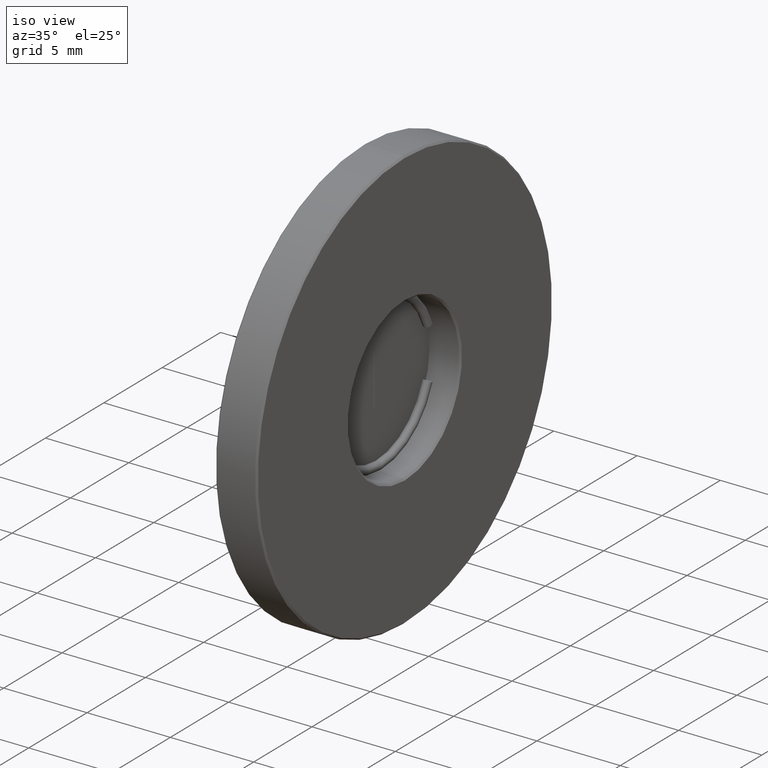
[diagram: clean part render]
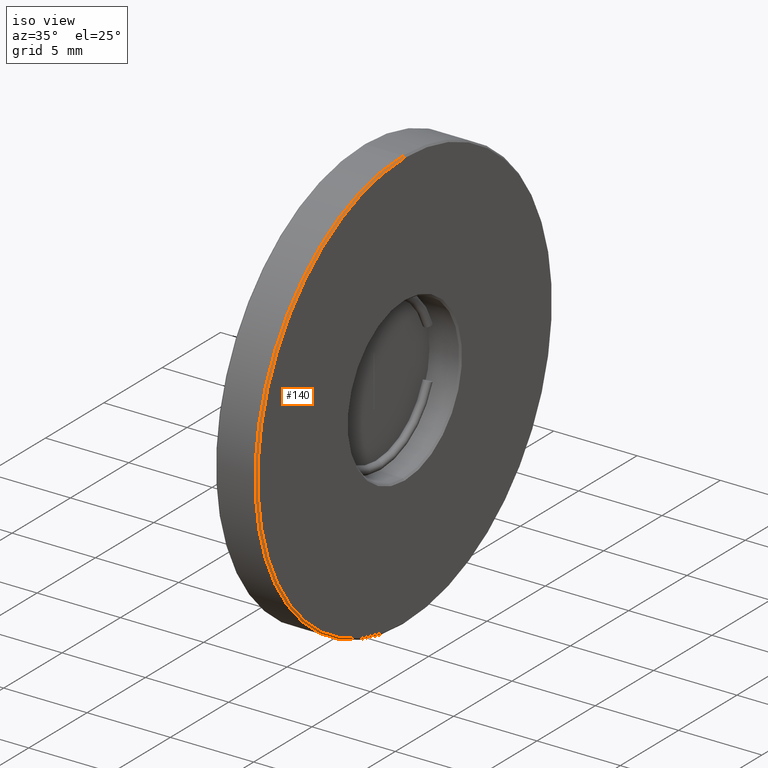
[diagram: same view with one face highlighted and labeled with its STEP entity id]
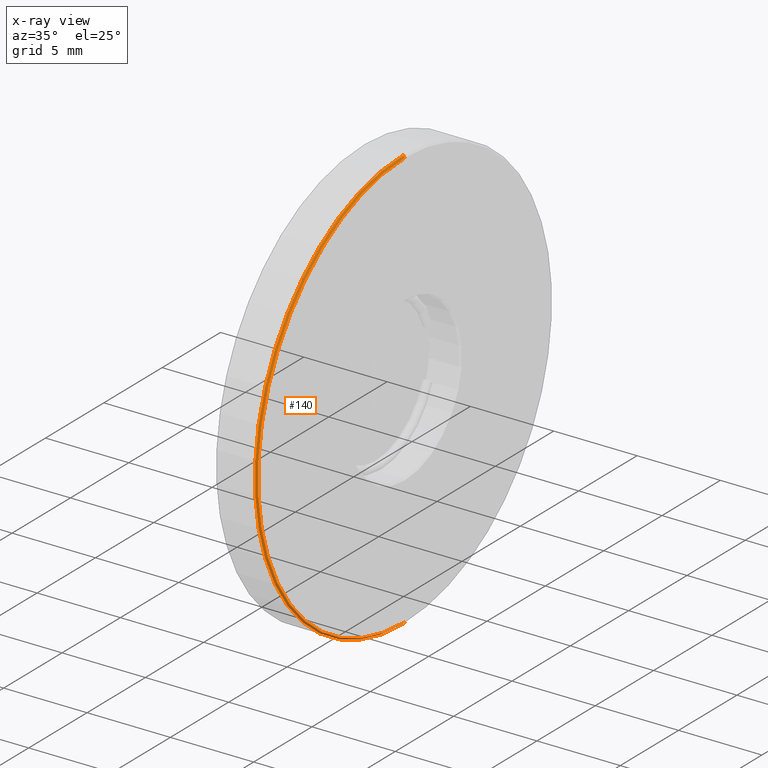
[diagram: x-ray of the same camera — body ghosted, the highlighted face saturated]
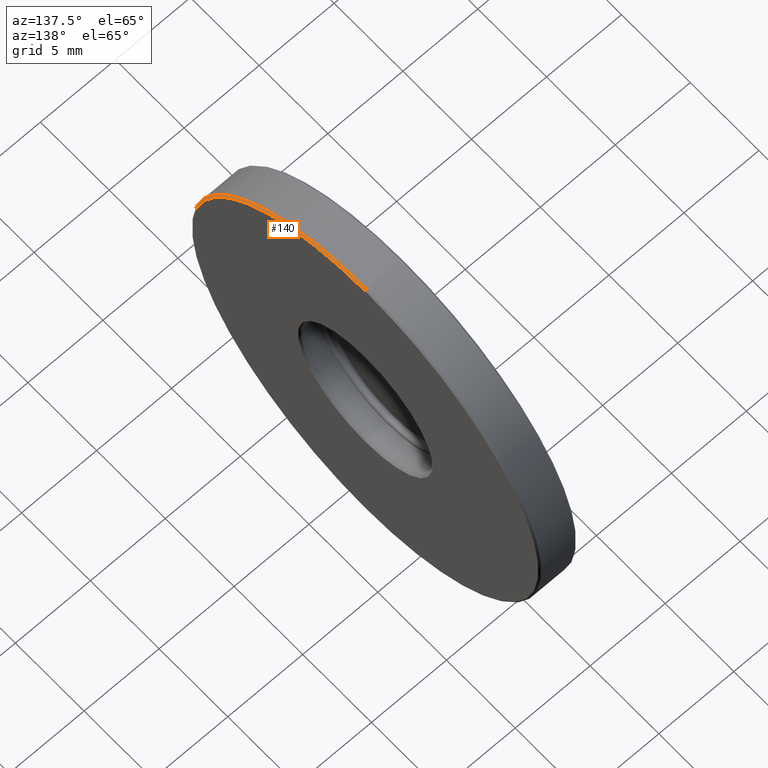
[diagram: same view with one face highlighted and labeled with its STEP entity id]
A machine part, iso view. The second image highlights one B-rep face of the part: STEP entity #140.
The next image is the same camera in x-ray: the body ghosted, the highlighted face saturated — about 0% of this face is hidden behind the body in this view.
A second angle (auxiliary view) of the same face is appended — the face is thin or edge-on in the first view.
In plain terms, the highlighted conical surface has half-angle 45 deg.
Its self-contained STEP definition (entity closure, byte-faithful):
#72 = DIRECTION ( 'NONE',  ( -0.7071067811865415775, 0.000000000000000000, 0.7071067811865535679 ) ) ;
#77 = DIRECTION ( 'NONE',  ( 0.000000000000000000, 0.000000000000000000, -1.000000000000000000 ) ) ;
#83 = CARTESIAN_POINT ( 'NONE',  ( -2.434863851252999645, 1.436758841085001626, 12.79999999999999893 ) ) ;
#125 = EDGE_CURVE ( 'NONE', #954, #929, #151, .T. ) ;
#140 = ADVANCED_FACE ( 'NONE', ( #692 ), #1192, .T. ) ;
#151 = LINE ( 'NONE', #346, #958 ) ;
#238 = VERTEX_POINT ( 'NONE', #1000 ) ;
#285 = CIRCLE ( 'NONE', #589, 12.69999999999999929 ) ;
#346 = CARTESIAN_POINT ( 'NONE',  ( -2.434863851252999645, 1.436758841085001626, 12.79999999999999893 ) ) ;
#352 = CARTESIAN_POINT ( 'NONE',  ( -2.434863851252999645, 1.436758841085000071, 25.39999999999999858 ) ) ;
#356 = EDGE_CURVE ( 'NONE', #238, #954, #771, .T. ) ;
#394 = DIRECTION ( 'NONE',  ( -1.000000000000000000, 0.000000000000000000, 0.000000000000000000 ) ) ;
#470 = ORIENTED_EDGE ( 'NONE', *, *, #1297, .F. ) ;
#481 = DIRECTION ( 'NONE',  ( -0.7071067811865415775, 8.659560562355003116E-17, -0.7071067811865535679 ) ) ;
#546 = CARTESIAN_POINT ( 'NONE',  ( -2.534863851253000178, 1.436758841085001626, 12.69999999999999929 ) ) ;
#573 = AXIS2_PLACEMENT_3D ( 'NONE', #633, #394, #925 ) ;
#589 = AXIS2_PLACEMENT_3D ( 'NONE', #629, #1061, #77 ) ;
#629 = CARTESIAN_POINT ( 'NONE',  ( -2.534863851253000178, 1.436758841085000071, 25.39999999999999858 ) ) ;
#633 = CARTESIAN_POINT ( 'NONE',  ( -2.434863851252999645, 1.436758841085000071, 25.39999999999999858 ) ) ;
#652 = VERTEX_POINT ( 'NONE', #1070 ) ;
#653 = EDGE_CURVE ( 'NONE', #238, #652, #827, .T. ) ;
#692 = FACE_OUTER_BOUND ( 'NONE', #1141, .T. ) ;
#771 = CIRCLE ( 'NONE', #1310, 12.59999999999999964 ) ;
#791 = DIRECTION ( 'NONE',  ( 1.000000000000000000, 0.000000000000000000, 0.000000000000000000 ) ) ;
#827 = LINE ( 'NONE', #1052, #1201 ) ;
#903 = ORIENTED_EDGE ( 'NONE', *, *, #356, .F. ) ;
#925 = DIRECTION ( 'NONE',  ( 0.000000000000000000, 0.000000000000000000, 1.000000000000000000 ) ) ;
#929 = VERTEX_POINT ( 'NONE', #546 ) ;
#954 = VERTEX_POINT ( 'NONE', #83 ) ;
#958 = VECTOR ( 'NONE', #481, 1000.000000000000000 ) ;
#1000 = CARTESIAN_POINT ( 'NONE',  ( -2.434863851252999645, 1.436758841085000071, 38.00000000000000000 ) ) ;
#1027 = DIRECTION ( 'NONE',  ( 0.000000000000000000, 0.000000000000000000, -1.000000000000000000 ) ) ;
#1052 = CARTESIAN_POINT ( 'NONE',  ( -2.434863851252999645, 1.436758841085000071, 38.00000000000000000 ) ) ;
#1061 = DIRECTION ( 'NONE',  ( -1.000000000000000000, 0.000000000000000000, 0.000000000000000000 ) ) ;
#1070 = CARTESIAN_POINT ( 'NONE',  ( -2.534863851253000178, 1.436758841085000071, 38.09999999999999432 ) ) ;
#1141 = EDGE_LOOP ( 'NONE', ( #1260, #903, #1318, #470 ) ) ;
#1192 = CONICAL_SURFACE ( 'NONE', #573, 12.59999999999999964, 0.7853981633974568277 ) ;
#1201 = VECTOR ( 'NONE', #72, 1000.000000000000000 ) ;
#1260 = ORIENTED_EDGE ( 'NONE', *, *, #125, .F. ) ;
#1297 = EDGE_CURVE ( 'NONE', #929, #652, #285, .T. ) ;
#1310 = AXIS2_PLACEMENT_3D ( 'NONE', #352, #791, #1027 ) ;
#1318 = ORIENTED_EDGE ( 'NONE', *, *, #653, .T. ) ;